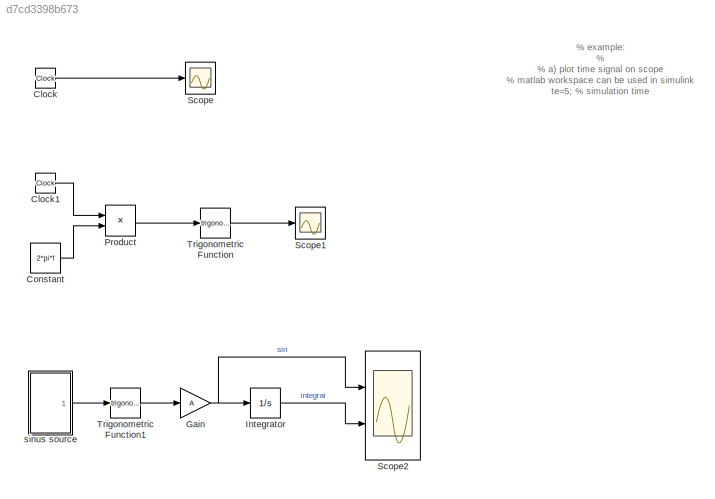
MODEL slx_d7cd3398b673
KIND model
CONFIG AbsTol = auto
CONFIG EnableMultiTasking = off
CONFIG FixedStep = auto
CONFIG MaxStep = te/50/10
CONFIG MinStep = auto
CONFIG RelTol = 1e-3
CONFIG SampleTimeConstraint = Unconstrained
CONFIG SolverName = VariableStepAuto
CONFIG StartTime = 0.0
CONFIG StopTime = 10.0
BLOCK [Clock] Clock
  DisplayTime = on
BLOCK [Clock] Clock1
  DisplayTime = on
BLOCK [Constant] Constant
  Value = 2*pi*f
BLOCK [Gain] Gain
  Gain = A
BLOCK [Integrator] Integrator
  Ports = [1, 1]
BLOCK [Product] Product
  Ports = [2, 1]
BLOCK [Scope] Scope
  Floating = off
  NumInputPorts = 1
  Ports = [1]
  ScopeSpecificationString = Simulink.scopes.TimeScopeBlockCfg('CurrentConfiguration', extmgr.ConfigurationSet(extmgr.Configuration('Core','General UI',true),extmgr.Configuration('Core','Source UI',true),extmgr.Configuration('Sources','WiredSimulink',true),extmgr.Configuration('Visuals','Time Domain',true),extmgr.Configuration('Tools','Plot Navigation',true),extmgr.Configuration('Tools','Measurements',true)),'Version','2021a'...<+1ch>
BLOCK [Scope] Scope1
  Floating = off
  NumInputPorts = 1
  Ports = [1]
  ScopeSpecificationString = Simulink.scopes.TimeScopeBlockCfg('CurrentConfiguration', extmgr.ConfigurationSet(extmgr.Configuration('Core','General UI',true),extmgr.Configuration('Core','Source UI',true),extmgr.Configuration('Sources','WiredSimulink',true,'DataLoggingVariableName','ScopeData1'),extmgr.Configuration('Visuals','Time Domain',true,'SerializedDisplays',{struct('MinYLimReal','-1.24952','MaxYLimReal','1.24952','YLab...<+1462ch>
BLOCK [Scope] Scope2
  Floating = off
  NumInputPorts = 2
  Ports = [2]
  ScopeSpecificationString = Simulink.scopes.TimeScopeBlockCfg('CurrentConfiguration', extmgr.ConfigurationSet(extmgr.Configuration('Core','General UI',true),extmgr.Configuration('Core','Source UI',true),extmgr.Configuration('Sources','WiredSimulink',true,'DataLoggingVariableName','ScopeData2'),extmgr.Configuration('Visuals','Time Domain',true,'SerializedDisplays',{struct('MinYLimReal','-2.49998','MaxYLimReal','2.49998','YLab...<+1452ch>
BLOCK [Trigonometry] Trigonometric Function
  Ports = [1, 1]
BLOCK [Trigonometry] Trigonometric Function1
  Ports = [1, 1]
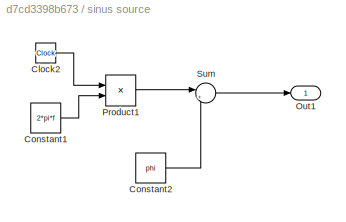
BLOCK [SubSystem] sinus source
  Ports = [0, 1]
  RequestExecContextInheritance = off
BLOCK [Clock] sinus source/Clock2
  DisplayTime = on
BLOCK [Constant] sinus source/Constant1
  Value = 2*pi*f
BLOCK [Constant] sinus source/Constant2
  Value = phi
BLOCK [Outport] sinus source/Out1
BLOCK [Product] sinus source/Product1
  Ports = [2, 1]
BLOCK [Sum] sinus source/Sum
  Inputs = |++
  Ports = [2, 1]
ANNOTATION (root): % example: % % a) plot time signal on scope % matlab workspace can be used in simulink te=5; % simulation time % b) plot sin(w*t) on scope f=1; % frequency [Hz] % c) plot A*sin(w*t+phi) on scope A=2; % amplitude phi=pi/4; % phase % d) integrate sinus signal
LINE Clock1:1 -> Product:1
LINE Clock:1 -> Scope:1
LINE Constant:1 -> Product:2
NET Gain:1 -> Integrator:1, Scope2:1
LINE Integrator:1 -> Scope2:2
LINE Product:1 -> Trigonometric Function:1
LINE Trigonometric Function1:1 -> Gain:1
LINE Trigonometric Function:1 -> Scope1:1
LINE sinus source/Clock2:1 -> sinus source/Product1:1
LINE sinus source/Constant1:1 -> sinus source/Product1:2
LINE sinus source/Constant2:1 -> sinus source/Sum:2
LINE sinus source/Product1:1 -> sinus source/Sum:1
LINE sinus source/Sum:1 -> sinus source/Out1:1
LINE sinus source:1 -> Trigonometric Function1:1
note: NET lines group one-source signal fan-out (src -> all destinations, sorted); 1:1 wires keep LINE
